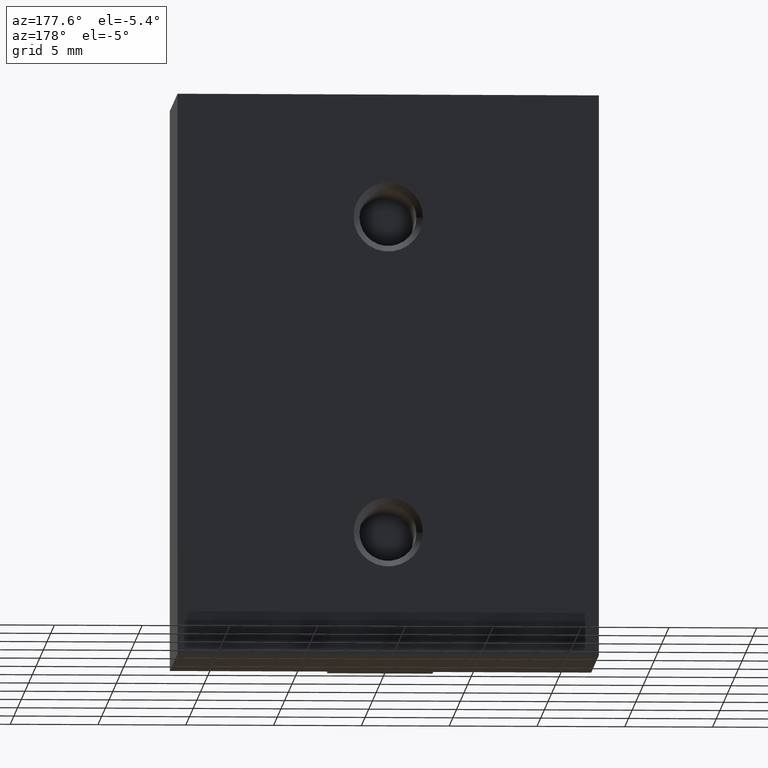
[diagram: clean part render]
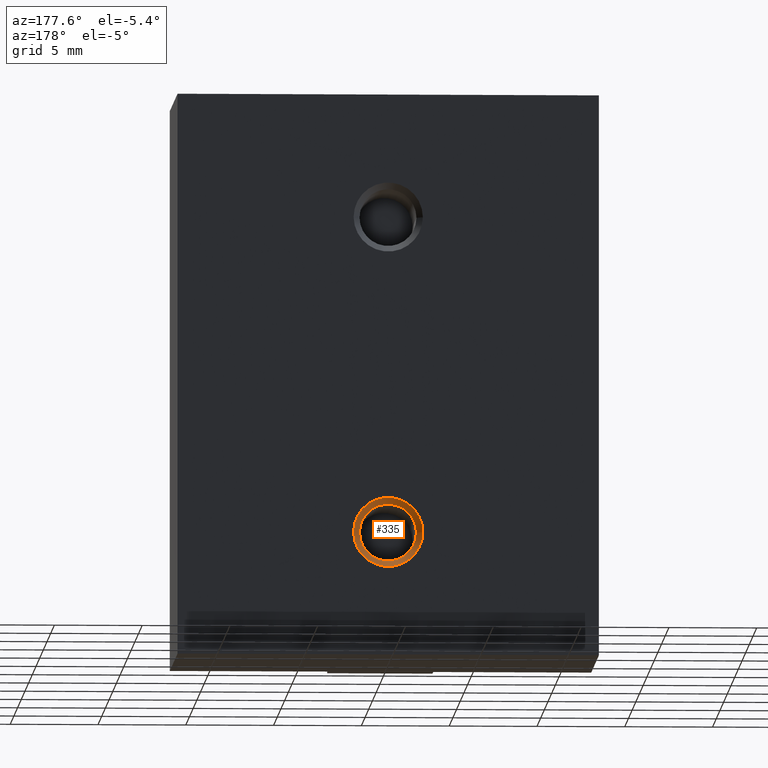
[diagram: same view with one face highlighted and labeled with its STEP entity id]
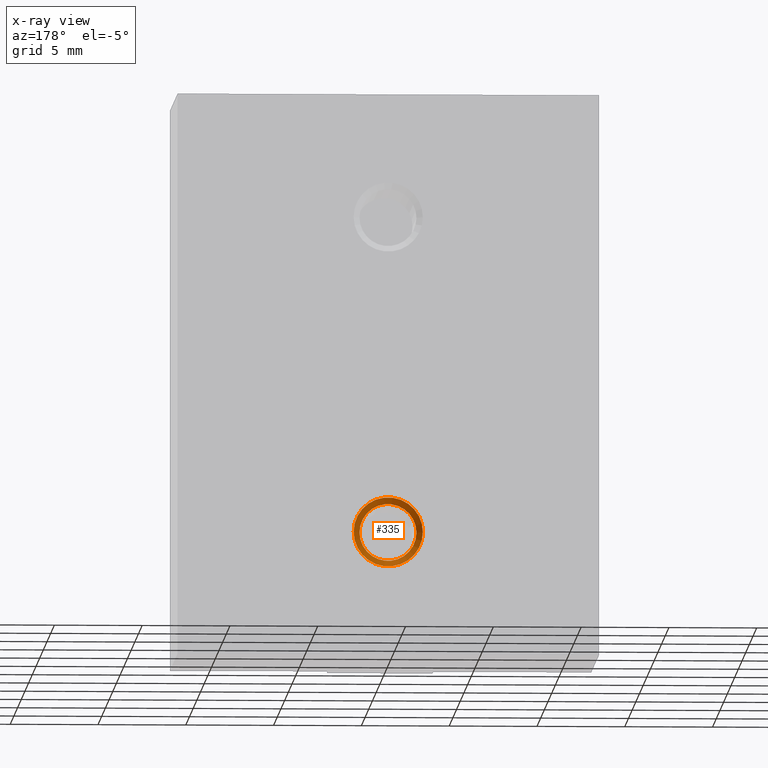
[diagram: x-ray of the same camera — body ghosted, the highlighted face saturated]
A machine part, auxiliary view. The second image highlights one B-rep face of the part: STEP entity #335.
The next image is the same camera in x-ray: the body ghosted, the highlighted face saturated — about 0% of this face is hidden behind the body in this view.
In plain terms, the highlighted conical surface has half-angle 45 deg.
Its self-contained STEP definition (entity closure, byte-faithful):
#23=CONICAL_SURFACE('',#433,1.796,0.785398163397449);
#66=FACE_OUTER_BOUND('',#88,.T.);
#88=EDGE_LOOP('',(#295,#296,#297,#298));
#122=LINE('',#624,#152);
#152=VECTOR('',#521,1.796);
#160=CIRCLE('',#434,1.971);
#161=CIRCLE('',#435,1.621);
#187=VERTEX_POINT('',#621);
#188=VERTEX_POINT('',#623);
#224=EDGE_CURVE('',#187,#187,#160,.T.);
#225=EDGE_CURVE('',#187,#188,#122,.T.);
#226=EDGE_CURVE('',#188,#188,#161,.T.);
#295=ORIENTED_EDGE('',*,*,#224,.T.);
#296=ORIENTED_EDGE('',*,*,#225,.T.);
#297=ORIENTED_EDGE('',*,*,#226,.T.);
#298=ORIENTED_EDGE('',*,*,#225,.F.);
#335=ADVANCED_FACE('',(#66),#23,.F.);
#433=AXIS2_PLACEMENT_3D('',#620,#517,#518);
#434=AXIS2_PLACEMENT_3D('',#622,#519,#520);
#435=AXIS2_PLACEMENT_3D('',#625,#522,#523);
#517=DIRECTION('center_axis',(0.,0.,-1.));
#518=DIRECTION('ref_axis',(1.,0.,0.));
#519=DIRECTION('center_axis',(0.,0.,-1.));
#520=DIRECTION('ref_axis',(1.,0.,0.));
#521=DIRECTION('',(0.707106781186548,-8.65956056235493E-17,0.707106781186547));
#522=DIRECTION('center_axis',(0.,0.,1.));
#523=DIRECTION('ref_axis',(1.,0.,0.));
#620=CARTESIAN_POINT('Origin',(0.,0.,0.175));
#621=CARTESIAN_POINT('',(-1.971,2.41377884111943E-16,0.));
#622=CARTESIAN_POINT('Origin',(0.,0.,0.));
#623=CARTESIAN_POINT('',(-1.621,-1.98515246141786E-16,0.35));
#624=CARTESIAN_POINT('',(-1.796,2.19946565126865E-16,0.175));
#625=CARTESIAN_POINT('Origin',(0.,0.,0.35));